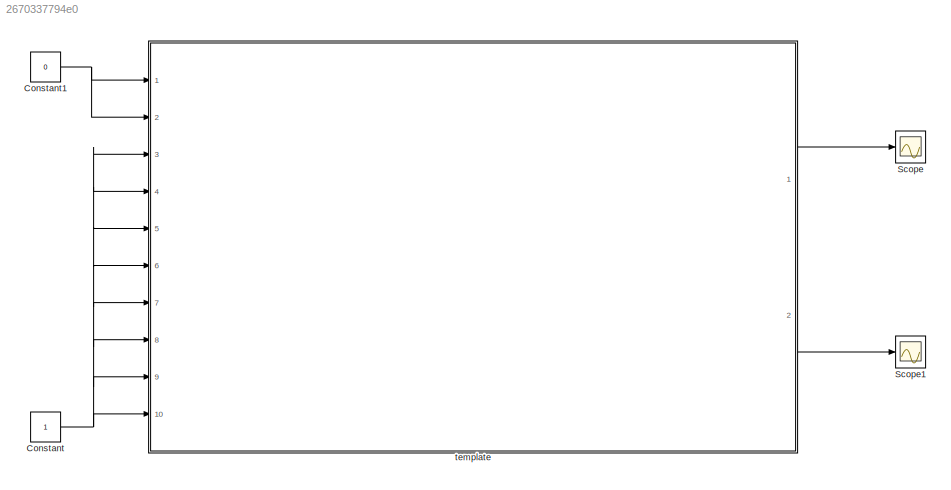
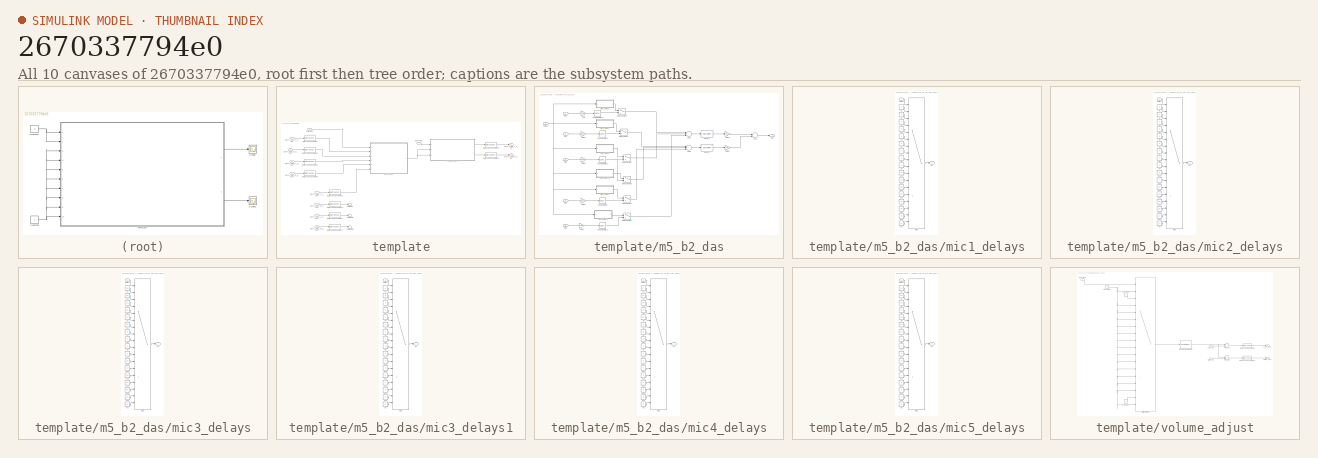
[diagram: thumbnail index - all 10 canvases of the model, root first then tree order]
MODEL slx_2670337794e0
KIND model
CONFIG AbsTol = auto
CONFIG FixedStep = auto
CONFIG MaxStep = auto
CONFIG MinStep = auto
CONFIG RelTol = 1e-3
CONFIG SampleTimeConstraint = Unconstrained
CONFIG Solver = FixedStepAuto
CONFIG SolverMode = SingleTasking
CONFIG SolverName = FixedStepAuto
CONFIG StartTime = 0.0
CONFIG StopTime = 10.0
BLOCK [Constant] Constant
  LockScale = on
  OutDataTypeStr = int32
  SampleTime = -1
BLOCK [Constant] Constant1
  LockScale = on
  OutDataTypeStr = uint32
  SampleTime = -1
  Value = 0
BLOCK [Scope] Scope
  Ports = [1]
  ScopeSpecificationString = Simulink.scopes.TimeScopeBlockCfg('CurrentConfiguration', extmgr.ConfigurationSet(extmgr.Configuration('Core','General UI',true),extmgr.Configuration('Core','Source UI',true),extmgr.Configuration('Sources','WiredSimulink',true,'DataLoggingLimitDataPoints',true,'DataLoggingSaveFormat','Array','DataLoggingDecimation','1','DataLoggingDecimateData',true),extmgr.Configuration('Visuals','Time Domain',tr...<+1477ch>
BLOCK [Scope] Scope1
  Ports = [1]
  ScopeSpecificationString = Simulink.scopes.TimeScopeBlockCfg('CurrentConfiguration', extmgr.ConfigurationSet(extmgr.Configuration('Core','General UI',true),extmgr.Configuration('Core','Source UI',true),extmgr.Configuration('Sources','WiredSimulink',true,'DataLoggingVariableName','ScopeData1','DataLoggingLimitDataPoints',true,'DataLoggingSaveFormat','Array','DataLoggingDecimation','1','DataLoggingDecimateData',true),extmgr.C...<+1508ch>
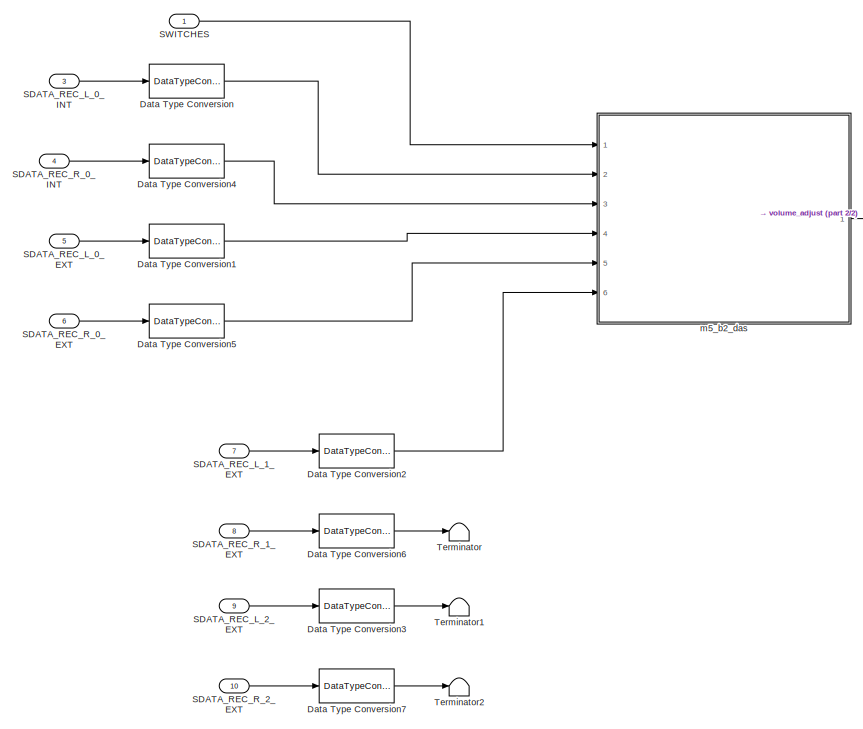
[diagram: template - part 1/2, left side, full height]
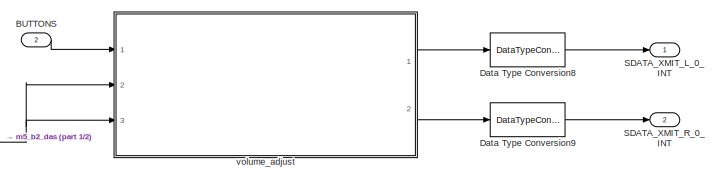
[diagram: template - part 2/2, top right region]
BLOCK [SubSystem] template
  Ports = [10, 2]
  RequestExecContextInheritance = off
  TreatAsAtomicUnit = on
  Variant = off
BLOCK [Inport] template/BUTTONS
  IconDisplay = Port number
  Port = 2
BLOCK [DataTypeConversion] template/Data Type Conversion
  ConvertRealWorld = Stored Integer (SI)
  OutDataTypeStr = fixdt(1,32,31)
  SaturateOnIntegerOverflow = off
BLOCK [DataTypeConversion] template/Data Type Conversion1
  ConvertRealWorld = Stored Integer (SI)
  OutDataTypeStr = fixdt(1,32,31)
  SaturateOnIntegerOverflow = off
BLOCK [DataTypeConversion] template/Data Type Conversion2
  ConvertRealWorld = Stored Integer (SI)
  OutDataTypeStr = fixdt(1,32,31)
  SaturateOnIntegerOverflow = off
BLOCK [DataTypeConversion] template/Data Type Conversion3
  ConvertRealWorld = Stored Integer (SI)
  OutDataTypeStr = fixdt(1,32,31)
  SaturateOnIntegerOverflow = off
BLOCK [DataTypeConversion] template/Data Type Conversion4
  ConvertRealWorld = Stored Integer (SI)
  OutDataTypeStr = fixdt(1,32,31)
  SaturateOnIntegerOverflow = off
BLOCK [DataTypeConversion] template/Data Type Conversion5
  ConvertRealWorld = Stored Integer (SI)
  OutDataTypeStr = fixdt(1,32,31)
  SaturateOnIntegerOverflow = off
BLOCK [DataTypeConversion] template/Data Type Conversion6
  ConvertRealWorld = Stored Integer (SI)
  OutDataTypeStr = fixdt(1,32,31)
  SaturateOnIntegerOverflow = off
BLOCK [DataTypeConversion] template/Data Type Conversion7
  ConvertRealWorld = Stored Integer (SI)
  OutDataTypeStr = fixdt(1,32,31)
  SaturateOnIntegerOverflow = off
BLOCK [DataTypeConversion] template/Data Type Conversion8
  ConvertRealWorld = Stored Integer (SI)
  OutDataTypeStr = int32
BLOCK [DataTypeConversion] template/Data Type Conversion9
  ConvertRealWorld = Stored Integer (SI)
  OutDataTypeStr = int32
BLOCK [Inport] template/SDATA_REC_L_0_EXT
  IconDisplay = Port number
  Port = 5
BLOCK [Inport] template/SDATA_REC_L_0_INT
  IconDisplay = Port number
  Port = 3
BLOCK [Inport] template/SDATA_REC_L_1_EXT
  IconDisplay = Port number
  Port = 7
BLOCK [Inport] template/SDATA_REC_L_2_EXT
  IconDisplay = Port number
  Port = 9
BLOCK [Inport] template/SDATA_REC_R_0_EXT
  IconDisplay = Port number
  Port = 6
BLOCK [Inport] template/SDATA_REC_R_0_INT
  IconDisplay = Port number
  Port = 4
BLOCK [Inport] template/SDATA_REC_R_1_EXT
  IconDisplay = Port number
  Port = 8
BLOCK [Inport] template/SDATA_REC_R_2_EXT
  IconDisplay = Port number
  Port = 10
BLOCK [Outport] template/SDATA_XMIT_L_0_INT
  IconDisplay = Port number
BLOCK [Outport] template/SDATA_XMIT_R_0_INT
  IconDisplay = Port number
  Port = 2
BLOCK [Inport] template/SWITCHES
  IconDisplay = Port number
BLOCK [Terminator] template/Terminator
BLOCK [Terminator] template/Terminator1
BLOCK [Terminator] template/Terminator2
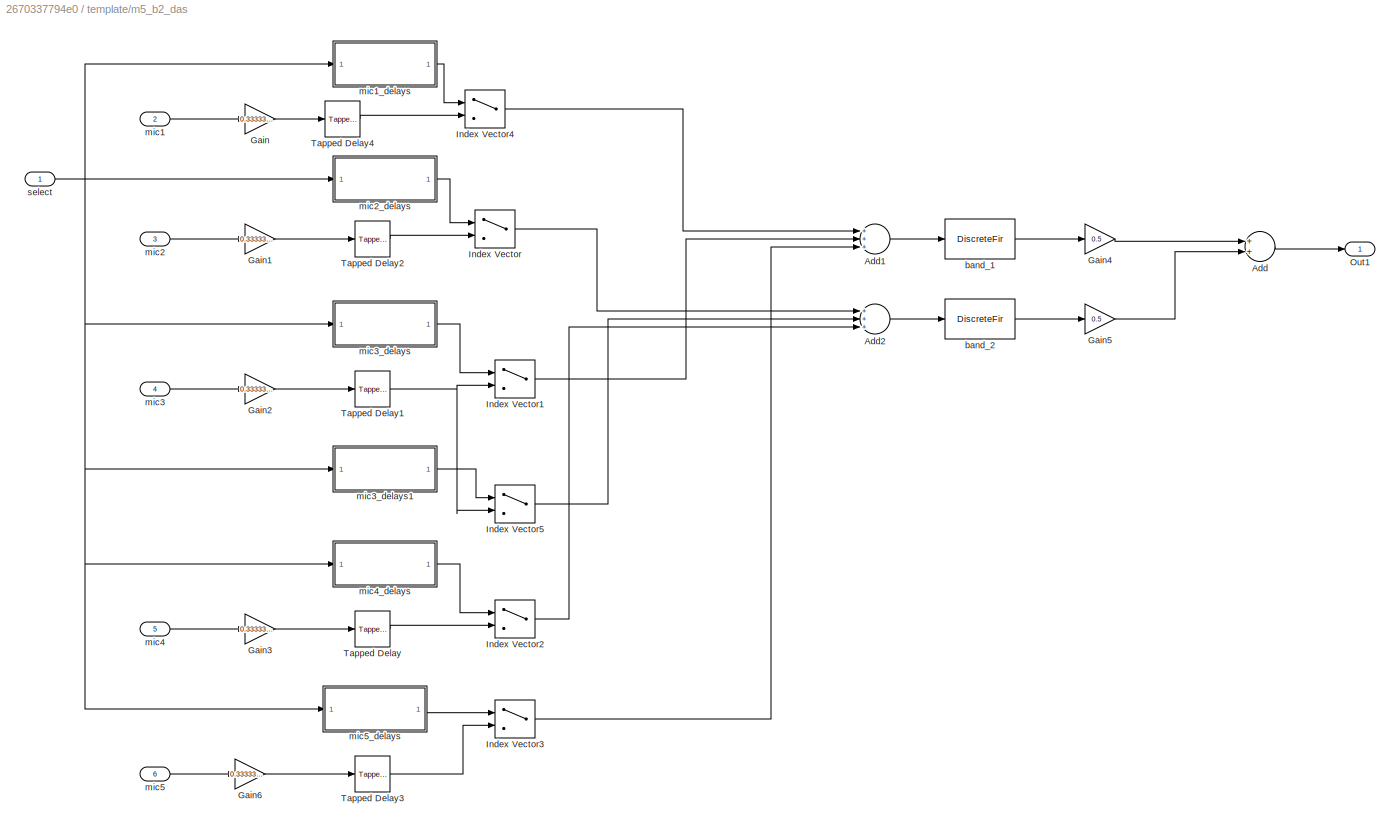
BLOCK [SubSystem] template/m5_b2_das
  Ports = [6, 1]
  RequestExecContextInheritance = off
  Variant = off
BLOCK [Sum] template/m5_b2_das/Add
  AccumDataTypeStr = Inherit: Same as first input
  InputSameDT = off
  OutDataTypeStr = Inherit: Inherit via back propagation
  Ports = [2, 1]
  RndMeth = Zero
  SaturateOnIntegerOverflow = off
BLOCK [Sum] template/m5_b2_das/Add1
  AccumDataTypeStr = Inherit: Same as first input
  InputSameDT = off
  Inputs = +++
  OutDataTypeStr = Inherit: Inherit via back propagation
  Ports = [3, 1]
  RndMeth = Zero
  SaturateOnIntegerOverflow = off
BLOCK [Sum] template/m5_b2_das/Add2
  AccumDataTypeStr = Inherit: Same as first input
  InputSameDT = off
  Inputs = +++
  OutDataTypeStr = Inherit: Inherit via back propagation
  Ports = [3, 1]
  RndMeth = Zero
  SaturateOnIntegerOverflow = off
BLOCK [Gain] template/m5_b2_das/Gain
  Gain = 0.333333333333333333333333
  OutDataTypeStr = Inherit: Inherit via back propagation
  ParamDataTypeStr = fixdt(1,32,31)
  RndMeth = Zero
  SaturateOnIntegerOverflow = off
BLOCK [Gain] template/m5_b2_das/Gain1
  Gain = 0.333333333333333333333333
  OutDataTypeStr = Inherit: Inherit via back propagation
  ParamDataTypeStr = fixdt(1,32,31)
  RndMeth = Zero
  SaturateOnIntegerOverflow = off
BLOCK [Gain] template/m5_b2_das/Gain2
  Gain = 0.333333333333333333333333
  OutDataTypeStr = Inherit: Inherit via back propagation
  ParamDataTypeStr = fixdt(1,32,31)
  RndMeth = Zero
  SaturateOnIntegerOverflow = off
BLOCK [Gain] template/m5_b2_das/Gain3
  Gain = 0.333333333333333333333333
  OutDataTypeStr = Inherit: Inherit via back propagation
  ParamDataTypeStr = fixdt(1,32,31)
  RndMeth = Zero
  SaturateOnIntegerOverflow = off
BLOCK [Gain] template/m5_b2_das/Gain4
  Gain = 0.5
  OutDataTypeStr = Inherit: Inherit via back propagation
  ParamDataTypeStr = fixdt(1,32,31)
  RndMeth = Zero
  SaturateOnIntegerOverflow = off
BLOCK [Gain] template/m5_b2_das/Gain5
  Gain = 0.5
  OutDataTypeStr = Inherit: Inherit via back propagation
  ParamDataTypeStr = fixdt(1,32,31)
  RndMeth = Zero
  SaturateOnIntegerOverflow = off
BLOCK [Gain] template/m5_b2_das/Gain6
  Gain = 0.333333333333333333333333
  OutDataTypeStr = Inherit: Inherit via back propagation
  ParamDataTypeStr = fixdt(1,32,31)
  RndMeth = Zero
  SaturateOnIntegerOverflow = off
BLOCK [MultiPortSwitch] template/m5_b2_das/Index Vector
  DataPortOrder = Zero-based contiguous
  InputSameDT = off
  Inputs = 1
  OutDataTypeStr = Inherit: Inherit via back propagation
  Ports = [2, 1]
  RndMeth = Zero
  SaturateOnIntegerOverflow = off
  zeroidx = on
BLOCK [MultiPortSwitch] template/m5_b2_das/Index Vector1
  DataPortOrder = Zero-based contiguous
  InputSameDT = off
  Inputs = 1
  OutDataTypeStr = Inherit: Inherit via back propagation
  Ports = [2, 1]
  RndMeth = Zero
  SaturateOnIntegerOverflow = off
  zeroidx = on
BLOCK [MultiPortSwitch] template/m5_b2_das/Index Vector2
  DataPortOrder = Zero-based contiguous
  InputSameDT = off
  Inputs = 1
  OutDataTypeStr = Inherit: Inherit via back propagation
  Ports = [2, 1]
  RndMeth = Zero
  SaturateOnIntegerOverflow = off
  zeroidx = on
BLOCK [MultiPortSwitch] template/m5_b2_das/Index Vector3
  DataPortOrder = Zero-based contiguous
  InputSameDT = off
  Inputs = 1
  OutDataTypeStr = Inherit: Inherit via back propagation
  Ports = [2, 1]
  RndMeth = Zero
  SaturateOnIntegerOverflow = off
  zeroidx = on
BLOCK [MultiPortSwitch] template/m5_b2_das/Index Vector4
  DataPortOrder = Zero-based contiguous
  InputSameDT = off
  Inputs = 1
  OutDataTypeStr = Inherit: Inherit via back propagation
  Ports = [2, 1]
  RndMeth = Zero
  SaturateOnIntegerOverflow = off
  zeroidx = on
BLOCK [MultiPortSwitch] template/m5_b2_das/Index Vector5
  DataPortOrder = Zero-based contiguous
  InputSameDT = off
  Inputs = 1
  OutDataTypeStr = Inherit: Inherit via back propagation
  Ports = [2, 1]
  RndMeth = Zero
  SaturateOnIntegerOverflow = off
  zeroidx = on
BLOCK [Outport] template/m5_b2_das/Out1
  IconDisplay = Port number
BLOCK [Reference] template/m5_b2_das/Tapped Delay  REF=simulink/Discrete/Tapped Delay
  Ports = [1, 1]
  SourceBlock = simulink/Discrete/Tapped Delay
  SourceType = Tapped Delay Line
BLOCK [Reference] template/m5_b2_das/Tapped Delay1  REF=simulink/Discrete/Tapped Delay
  Ports = [1, 1]
  SourceBlock = simulink/Discrete/Tapped Delay
  SourceType = Tapped Delay Line
BLOCK [Reference] template/m5_b2_das/Tapped Delay2  REF=simulink/Discrete/Tapped Delay
  Ports = [1, 1]
  SourceBlock = simulink/Discrete/Tapped Delay
  SourceType = Tapped Delay Line
BLOCK [Reference] template/m5_b2_das/Tapped Delay3  REF=simulink/Discrete/Tapped Delay
  Ports = [1, 1]
  SourceBlock = simulink/Discrete/Tapped Delay
  SourceType = Tapped Delay Line
BLOCK [Reference] template/m5_b2_das/Tapped Delay4  REF=simulink/Discrete/Tapped Delay
  Ports = [1, 1]
  SourceBlock = simulink/Discrete/Tapped Delay
  SourceType = Tapped Delay Line
BLOCK [DiscreteFir] template/m5_b2_das/band_1
  AccumDataTypeStr = fixdt(true,32,31)
  CoefDataTypeStr = fixdt(true,32,31)
  Coefficients = [-0.0006782323736677226 -0.00061797501410385913 -0.00055397321805590496 -0.00048323247815375899 -0.0004028708790337593 -0.00031134760707579243 -0.00020971779606389519 -0.00010278232418469137 5.3436904881575911e-19 8.3960710390948516e-05 0.00012913286531009868 0.0001106975285270993 0 -0.00023387312629336585 -0.00062201085466718272 -0.0011931884772806989 -0.0019711128359718205 -0.0029715765047669592...<+1730ch>
  FilterStructure = Direct form symmetric
  InputPortMap = u0
  OutDataTypeStr = fixdt(true,32,31)
  OutputPortMap = o0
  Ports = [1, 1]
  ProductDataTypeStr = fixdt(true,32,31)
  RndMeth = Zero
  TapSumDataTypeStr = fixdt(true,33,31)
BLOCK [DiscreteFir] template/m5_b2_das/band_2
  AccumDataTypeStr = fixdt(true,32,31)
  CoefDataTypeStr = fixdt(true,32,31)
  Coefficients = [0.00031148187044047459 -5.1095487798674356e-05 -0.00038181538543607328 -0.00062770468081234799 -0.00074248208966874556 -0.00070004998252385145 -0.00051178880868063385 -0.00024029641821307493 1.3497652502458736e-18 6.2855354767847132e-05 -0.00018821474507956884 -0.00082507757949582753 -0.0018036973576697544 -0.0029373522174964005 -0.0039121114215135214 -0.0043514130535061441 -0.0039203448488945537...<+1770ch>
  FilterStructure = Direct form symmetric
  InputPortMap = u0
  OutDataTypeStr = fixdt(true,32,31)
  OutputPortMap = o0
  Ports = [1, 1]
  ProductDataTypeStr = fixdt(true,32,31)
  RndMeth = Zero
  TapSumDataTypeStr = fixdt(true,33,31)
BLOCK [Inport] template/m5_b2_das/mic1
  IconDisplay = Port number
  Port = 2
BLOCK [SubSystem] template/m5_b2_das/mic1_delays
  Ports = [1, 1]
  RequestExecContextInheritance = off
  Variant = off
BLOCK [Constant] template/m5_b2_das/mic1_delays/d0
  OutDataTypeStr = uint16
  SampleTime = -1
  Value = 47
BLOCK [Constant] template/m5_b2_das/mic1_delays/d1
  OutDataTypeStr = uint16
  SampleTime = -1
  Value = 0
BLOCK [Constant] template/m5_b2_das/mic1_delays/d10
  OutDataTypeStr = uint16
  SampleTime = -1
  Value = 10
BLOCK [Constant] template/m5_b2_das/mic1_delays/d11
  OutDataTypeStr = uint16
  SampleTime = -1
  Value = 20
BLOCK [Constant] template/m5_b2_das/mic1_delays/d12
  OutDataTypeStr = uint16
  SampleTime = -1
  Value = 29
BLOCK [Constant] template/m5_b2_das/mic1_delays/d13
  OutDataTypeStr = uint16
  SampleTime = -1
  Value = 37
BLOCK [Constant] template/m5_b2_das/mic1_delays/d14
  OutDataTypeStr = uint16
  SampleTime = -1
  Value = 42
BLOCK [Constant] template/m5_b2_das/mic1_delays/d15
  OutDataTypeStr = uint16
  SampleTime = -1
  Value = 46
BLOCK [Constant] template/m5_b2_das/mic1_delays/d16
  OutDataTypeStr = uint16
  SampleTime = -1
  Value = 47
BLOCK [Constant] template/m5_b2_das/mic1_delays/d2
  OutDataTypeStr = uint16
  SampleTime = -1
  Value = 0
BLOCK [Constant] template/m5_b2_das/mic1_delays/d3
  OutDataTypeStr = uint16
  SampleTime = -1
  Value = 0
BLOCK [Constant] template/m5_b2_das/mic1_delays/d4
  OutDataTypeStr = uint16
  SampleTime = -1
  Value = 0
BLOCK [Constant] template/m5_b2_das/mic1_delays/d5
  OutDataTypeStr = uint16
  SampleTime = -1
  Value = 0
BLOCK [Constant] template/m5_b2_das/mic1_delays/d6
  OutDataTypeStr = uint16
  SampleTime = -1
  Value = 0
BLOCK [Constant] template/m5_b2_das/mic1_delays/d7
  OutDataTypeStr = uint16
  SampleTime = -1
  Value = 0
BLOCK [Constant] template/m5_b2_das/mic1_delays/d8
  OutDataTypeStr = uint16
  SampleTime = -1
  Value = 0
BLOCK [Constant] template/m5_b2_das/mic1_delays/d9
  OutDataTypeStr = uint16
  SampleTime = -1
  Value = 0
BLOCK [MultiPortSwitch] template/m5_b2_das/mic1_delays/mps
  DataPortForDefault = Additional data port
  DataPortOrder = Zero-based contiguous
  DiagnosticForDefault = None
  Inputs = 16
  OutDataTypeStr = Inherit: Inherit via back propagation
  Ports = [18, 1]
  RndMeth = Zero
  SaturateOnIntegerOverflow = off
BLOCK [Outport] template/m5_b2_das/mic1_delays/out
  IconDisplay = Port number
BLOCK [Inport] template/m5_b2_das/mic1_delays/select
  IconDisplay = Port number
BLOCK [Inport] template/m5_b2_das/mic2
  IconDisplay = Port number
  Port = 3
BLOCK [SubSystem] template/m5_b2_das/mic2_delays
  Ports = [1, 1]
  RequestExecContextInheritance = off
  Variant = off
BLOCK [Constant] template/m5_b2_das/mic2_delays/d0
  OutDataTypeStr = uint16
  SampleTime = -1
  Value = 17
BLOCK [Constant] template/m5_b2_das/mic2_delays/d1
  OutDataTypeStr = uint16
  SampleTime = -1
  Value = 0
BLOCK [Constant] template/m5_b2_das/mic2_delays/d10
  OutDataTypeStr = uint16
  SampleTime = -1
  Value = 3
BLOCK [Constant] template/m5_b2_das/mic2_delays/d11
  OutDataTypeStr = uint16
  SampleTime = -1
  Value = 7
BLOCK [Constant] template/m5_b2_das/mic2_delays/d12
  OutDataTypeStr = uint16
  SampleTime = -1
  Value = 10
BLOCK [Constant] template/m5_b2_das/mic2_delays/d13
  OutDataTypeStr = uint16
  SampleTime = -1
  Value = 13
BLOCK [Constant] template/m5_b2_das/mic2_delays/d14
  OutDataTypeStr = uint16
  SampleTime = -1
  Value = 15
BLOCK [Constant] template/m5_b2_das/mic2_delays/d15
  OutDataTypeStr = uint16
  SampleTime = -1
  Value = 16
BLOCK [Constant] template/m5_b2_das/mic2_delays/d16
  OutDataTypeStr = uint16
  SampleTime = -1
  Value = 17
BLOCK [Constant] template/m5_b2_das/mic2_delays/d2
  OutDataTypeStr = uint16
  SampleTime = -1
  Value = 0
BLOCK [Constant] template/m5_b2_das/mic2_delays/d3
  OutDataTypeStr = uint16
  SampleTime = -1
  Value = 0
BLOCK [Constant] template/m5_b2_das/mic2_delays/d4
  OutDataTypeStr = uint16
  SampleTime = -1
  Value = 0
BLOCK [Constant] template/m5_b2_das/mic2_delays/d5
  OutDataTypeStr = uint16
  SampleTime = -1
  Value = 0
BLOCK [Constant] template/m5_b2_das/mic2_delays/d6
  OutDataTypeStr = uint16
  SampleTime = -1
  Value = 0
BLOCK [Constant] template/m5_b2_das/mic2_delays/d7
  OutDataTypeStr = uint16
  SampleTime = -1
  Value = 0
BLOCK [Constant] template/m5_b2_das/mic2_delays/d8
  OutDataTypeStr = uint16
  SampleTime = -1
  Value = 0
BLOCK [Constant] template/m5_b2_das/mic2_delays/d9
  OutDataTypeStr = uint16
  SampleTime = -1
  Value = 0
BLOCK [MultiPortSwitch] template/m5_b2_das/mic2_delays/mps
  DataPortForDefault = Additional data port
  DataPortOrder = Zero-based contiguous
  DiagnosticForDefault = None
  Inputs = 16
  OutDataTypeStr = Inherit: Inherit via back propagation
  Ports = [18, 1]
  RndMeth = Zero
  SaturateOnIntegerOverflow = off
BLOCK [Outport] template/m5_b2_das/mic2_delays/out
  IconDisplay = Port number
BLOCK [Inport] template/m5_b2_das/mic2_delays/select
  IconDisplay = Port number
BLOCK [Inport] template/m5_b2_das/mic3
  IconDisplay = Port number
  Port = 4
BLOCK [SubSystem] template/m5_b2_das/mic3_delays
  Ports = [1, 1]
  RequestExecContextInheritance = off
  Variant = off
BLOCK [Constant] template/m5_b2_das/mic3_delays/d0
  OutDataTypeStr = uint16
  SampleTime = -1
  Value = 23
BLOCK [Constant] template/m5_b2_das/mic3_delays/d1
  OutDataTypeStr = uint16
  SampleTime = -1
  Value = 23
BLOCK [Constant] template/m5_b2_das/mic3_delays/d10
  OutDataTypeStr = uint16
  SampleTime = -1
  Value = 5
BLOCK [Constant] template/m5_b2_das/mic3_delays/d11
  OutDataTypeStr = uint16
  SampleTime = -1
  Value = 10
BLOCK [Constant] template/m5_b2_das/mic3_delays/d12
  OutDataTypeStr = uint16
  SampleTime = -1
  Value = 14
BLOCK [Constant] template/m5_b2_das/mic3_delays/d13
  OutDataTypeStr = uint16
  SampleTime = -1
  Value = 18
BLOCK [Constant] template/m5_b2_das/mic3_delays/d14
  OutDataTypeStr = uint16
  SampleTime = -1
  Value = 21
BLOCK [Constant] template/m5_b2_das/mic3_delays/d15
  OutDataTypeStr = uint16
  SampleTime = -1
  Value = 23
BLOCK [Constant] template/m5_b2_das/mic3_delays/d16
  OutDataTypeStr = uint16
  SampleTime = -1
  Value = 23
BLOCK [Constant] template/m5_b2_das/mic3_delays/d2
  OutDataTypeStr = uint16
  SampleTime = -1
  Value = 23
BLOCK [Constant] template/m5_b2_das/mic3_delays/d3
  OutDataTypeStr = uint16
  SampleTime = -1
  Value = 21
BLOCK [Constant] template/m5_b2_das/mic3_delays/d4
  OutDataTypeStr = uint16
  SampleTime = -1
  Value = 18
BLOCK [Constant] template/m5_b2_das/mic3_delays/d5
  OutDataTypeStr = uint16
  SampleTime = -1
  Value = 14
BLOCK [Constant] template/m5_b2_das/mic3_delays/d6
  OutDataTypeStr = uint16
  SampleTime = -1
  Value = 10
BLOCK [Constant] template/m5_b2_das/mic3_delays/d7
  OutDataTypeStr = uint16
  SampleTime = -1
  Value = 5
BLOCK [Constant] template/m5_b2_das/mic3_delays/d8
  OutDataTypeStr = uint16
  SampleTime = -1
  Value = 0
BLOCK [Constant] template/m5_b2_das/mic3_delays/d9
  OutDataTypeStr = uint16
  SampleTime = -1
  Value = 0
BLOCK [MultiPortSwitch] template/m5_b2_das/mic3_delays/mps
  DataPortForDefault = Additional data port
  DataPortOrder = Zero-based contiguous
  DiagnosticForDefault = None
  Inputs = 16
  OutDataTypeStr = Inherit: Inherit via back propagation
  Ports = [18, 1]
  RndMeth = Zero
  SaturateOnIntegerOverflow = off
BLOCK [Outport] template/m5_b2_das/mic3_delays/out
  IconDisplay = Port number
BLOCK [Inport] template/m5_b2_das/mic3_delays/select
  IconDisplay = Port number
BLOCK [SubSystem] template/m5_b2_das/mic3_delays1
  Ports = [1, 1]
  RequestExecContextInheritance = off
  Variant = off
BLOCK [Constant] template/m5_b2_das/mic3_delays1/d0
  OutDataTypeStr = uint16
  SampleTime = -1
  Value = 8
BLOCK [Constant] template/m5_b2_das/mic3_delays1/d1
  OutDataTypeStr = uint16
  SampleTime = -1
  Value = 8
BLOCK [Constant] template/m5_b2_das/mic3_delays1/d10
  OutDataTypeStr = uint16
  SampleTime = -1
BLOCK [Constant] template/m5_b2_das/mic3_delays1/d11
  OutDataTypeStr = uint16
  SampleTime = -1
  Value = 3
BLOCK [Constant] template/m5_b2_das/mic3_delays1/d12
  OutDataTypeStr = uint16
  SampleTime = -1
  Value = 5
BLOCK [Constant] template/m5_b2_das/mic3_delays1/d13
  OutDataTypeStr = uint16
  SampleTime = -1
  Value = 6
BLOCK [Constant] template/m5_b2_das/mic3_delays1/d14
  OutDataTypeStr = uint16
  SampleTime = -1
  Value = 7
BLOCK [Constant] template/m5_b2_das/mic3_delays1/d15
  OutDataTypeStr = uint16
  SampleTime = -1
  Value = 8
BLOCK [Constant] template/m5_b2_das/mic3_delays1/d16
  OutDataTypeStr = uint16
  SampleTime = -1
  Value = 8
BLOCK [Constant] template/m5_b2_das/mic3_delays1/d2
  OutDataTypeStr = uint16
  SampleTime = -1
  Value = 8
BLOCK [Constant] template/m5_b2_das/mic3_delays1/d3
  OutDataTypeStr = uint16
  SampleTime = -1
  Value = 7
BLOCK [Constant] template/m5_b2_das/mic3_delays1/d4
  OutDataTypeStr = uint16
  SampleTime = -1
  Value = 6
BLOCK [Constant] template/m5_b2_das/mic3_delays1/d5
  OutDataTypeStr = uint16
  SampleTime = -1
  Value = 5
BLOCK [Constant] template/m5_b2_das/mic3_delays1/d6
  OutDataTypeStr = uint16
  SampleTime = -1
  Value = 3
BLOCK [Constant] template/m5_b2_das/mic3_delays1/d7
  OutDataTypeStr = uint16
  SampleTime = -1
BLOCK [Constant] template/m5_b2_das/mic3_delays1/d8
  OutDataTypeStr = uint16
  SampleTime = -1
  Value = 0
BLOCK [Constant] template/m5_b2_das/mic3_delays1/d9
  OutDataTypeStr = uint16
  SampleTime = -1
  Value = 0
BLOCK [MultiPortSwitch] template/m5_b2_das/mic3_delays1/mps
  DataPortForDefault = Additional data port
  DataPortOrder = Zero-based contiguous
  DiagnosticForDefault = None
  Inputs = 16
  OutDataTypeStr = Inherit: Inherit via back propagation
  Ports = [18, 1]
  RndMeth = Zero
  SaturateOnIntegerOverflow = off
BLOCK [Outport] template/m5_b2_das/mic3_delays1/out
  IconDisplay = Port number
BLOCK [Inport] template/m5_b2_das/mic3_delays1/select
  IconDisplay = Port number
BLOCK [Inport] template/m5_b2_das/mic4
  IconDisplay = Port number
  Port = 5
BLOCK [SubSystem] template/m5_b2_das/mic4_delays
  Ports = [1, 1]
  RequestExecContextInheritance = off
  Variant = off
BLOCK [Constant] template/m5_b2_das/mic4_delays/d0
  OutDataTypeStr = uint16
  SampleTime = -1
  Value = 0
BLOCK [Constant] template/m5_b2_das/mic4_delays/d1
  OutDataTypeStr = uint16
  SampleTime = -1
  Value = 17
BLOCK [Constant] template/m5_b2_das/mic4_delays/d10
  OutDataTypeStr = uint16
  SampleTime = -1
  Value = 0
BLOCK [Constant] template/m5_b2_das/mic4_delays/d11
  OutDataTypeStr = uint16
  SampleTime = -1
  Value = 0
BLOCK [Constant] template/m5_b2_das/mic4_delays/d12
  OutDataTypeStr = uint16
  SampleTime = -1
  Value = 0
BLOCK [Constant] template/m5_b2_das/mic4_delays/d13
  OutDataTypeStr = uint16
  SampleTime = -1
  Value = 0
BLOCK [Constant] template/m5_b2_das/mic4_delays/d14
  OutDataTypeStr = uint16
  SampleTime = -1
  Value = 0
BLOCK [Constant] template/m5_b2_das/mic4_delays/d15
  OutDataTypeStr = uint16
  SampleTime = -1
  Value = 0
BLOCK [Constant] template/m5_b2_das/mic4_delays/d16
  OutDataTypeStr = uint16
  SampleTime = -1
  Value = 0
BLOCK [Constant] template/m5_b2_das/mic4_delays/d2
  OutDataTypeStr = uint16
  SampleTime = -1
  Value = 16
BLOCK [Constant] template/m5_b2_das/mic4_delays/d3
  OutDataTypeStr = uint16
  SampleTime = -1
  Value = 15
BLOCK [Constant] template/m5_b2_das/mic4_delays/d4
  OutDataTypeStr = uint16
  SampleTime = -1
  Value = 13
BLOCK [Constant] template/m5_b2_das/mic4_delays/d5
  OutDataTypeStr = uint16
  SampleTime = -1
  Value = 10
BLOCK [Constant] template/m5_b2_das/mic4_delays/d6
  OutDataTypeStr = uint16
  SampleTime = -1
  Value = 7
BLOCK [Constant] template/m5_b2_das/mic4_delays/d7
  OutDataTypeStr = uint16
  SampleTime = -1
  Value = 3
BLOCK [Constant] template/m5_b2_das/mic4_delays/d8
  OutDataTypeStr = uint16
  SampleTime = -1
  Value = 0
BLOCK [Constant] template/m5_b2_das/mic4_delays/d9
  OutDataTypeStr = uint16
  SampleTime = -1
  Value = 0
BLOCK [MultiPortSwitch] template/m5_b2_das/mic4_delays/mps
  DataPortForDefault = Additional data port
  DataPortOrder = Zero-based contiguous
  DiagnosticForDefault = None
  Inputs = 16
  OutDataTypeStr = Inherit: Inherit via back propagation
  Ports = [18, 1]
  RndMeth = Zero
  SaturateOnIntegerOverflow = off
BLOCK [Outport] template/m5_b2_das/mic4_delays/out
  IconDisplay = Port number
BLOCK [Inport] template/m5_b2_das/mic4_delays/select
  IconDisplay = Port number
BLOCK [Inport] template/m5_b2_das/mic5
  IconDisplay = Port number
  Port = 6
BLOCK [SubSystem] template/m5_b2_das/mic5_delays
  Ports = [1, 1]
  RequestExecContextInheritance = off
  Variant = off
BLOCK [Constant] template/m5_b2_das/mic5_delays/d0
  OutDataTypeStr = uint16
  SampleTime = -1
  Value = 0
BLOCK [Constant] template/m5_b2_das/mic5_delays/d1
  OutDataTypeStr = uint16
  SampleTime = -1
  Value = 47
BLOCK [Constant] template/m5_b2_das/mic5_delays/d10
  OutDataTypeStr = uint16
  SampleTime = -1
  Value = 0
BLOCK [Constant] template/m5_b2_das/mic5_delays/d11
  OutDataTypeStr = uint16
  SampleTime = -1
  Value = 0
BLOCK [Constant] template/m5_b2_das/mic5_delays/d12
  OutDataTypeStr = uint16
  SampleTime = -1
  Value = 0
BLOCK [Constant] template/m5_b2_das/mic5_delays/d13
  OutDataTypeStr = uint16
  SampleTime = -1
  Value = 0
BLOCK [Constant] template/m5_b2_das/mic5_delays/d14
  OutDataTypeStr = uint16
  SampleTime = -1
  Value = 0
BLOCK [Constant] template/m5_b2_das/mic5_delays/d15
  OutDataTypeStr = uint16
  SampleTime = -1
  Value = 0
BLOCK [Constant] template/m5_b2_das/mic5_delays/d16
  OutDataTypeStr = uint16
  SampleTime = -1
  Value = 0
BLOCK [Constant] template/m5_b2_das/mic5_delays/d2
  OutDataTypeStr = uint16
  SampleTime = -1
  Value = 46
BLOCK [Constant] template/m5_b2_das/mic5_delays/d3
  OutDataTypeStr = uint16
  SampleTime = -1
  Value = 42
BLOCK [Constant] template/m5_b2_das/mic5_delays/d4
  OutDataTypeStr = uint16
  SampleTime = -1
  Value = 37
BLOCK [Constant] template/m5_b2_das/mic5_delays/d5
  OutDataTypeStr = uint16
  SampleTime = -1
  Value = 29
BLOCK [Constant] template/m5_b2_das/mic5_delays/d6
  OutDataTypeStr = uint16
  SampleTime = -1
  Value = 20
BLOCK [Constant] template/m5_b2_das/mic5_delays/d7
  OutDataTypeStr = uint16
  SampleTime = -1
  Value = 10
BLOCK [Constant] template/m5_b2_das/mic5_delays/d8
  OutDataTypeStr = uint16
  SampleTime = -1
  Value = 0
BLOCK [Constant] template/m5_b2_das/mic5_delays/d9
  OutDataTypeStr = uint16
  SampleTime = -1
  Value = 0
BLOCK [MultiPortSwitch] template/m5_b2_das/mic5_delays/mps
  DataPortForDefault = Additional data port
  DataPortOrder = Zero-based contiguous
  DiagnosticForDefault = None
  Inputs = 16
  OutDataTypeStr = Inherit: Inherit via back propagation
  Ports = [18, 1]
  RndMeth = Zero
  SaturateOnIntegerOverflow = off
BLOCK [Outport] template/m5_b2_das/mic5_delays/out
  IconDisplay = Port number
BLOCK [Inport] template/m5_b2_das/mic5_delays/select
  IconDisplay = Port number
BLOCK [Inport] template/m5_b2_das/select
  IconDisplay = Port number
BLOCK [SubSystem] template/volume_adjust
  Ports = [3, 2]
  RequestExecContextInheritance = off
  Variant = off
BLOCK [Inport] template/volume_adjust/BUTTONS
  IconDisplay = Port number
BLOCK [Constant] template/volume_adjust/Constant
  OutDataTypeStr = fixdt(1,64,31)
  SampleTime = -1
BLOCK [Constant] template/volume_adjust/Constant1
  OutDataTypeStr = fixdt(1,64,31)
  SampleTime = -1
  Value = -1
BLOCK [Constant] template/volume_adjust/Constant2
  OutDataTypeStr = fixdt(1,64,31)
  SampleTime = -1
  Value = 0
BLOCK [DataTypeConversion] template/volume_adjust/Data Type Conversion
  OutDataTypeStr = fixdt(1,32,31)
  SaturateOnIntegerOverflow = off
BLOCK [DataTypeConversion] template/volume_adjust/Data Type Conversion1
  OutDataTypeStr = fixdt(1,32,31)
  SaturateOnIntegerOverflow = off
BLOCK [DiscreteIntegrator] template/volume_adjust/Discrete-Time Integrator
  ICPrevOutput = DiscIntNeverNeededParam
  ICPrevScaledInput = DiscIntNeverNeededParam
  InitialCondition = 1
  LimitOutput = on
  LowerSaturationLimit = 0
  OutDataTypeStr = fixdt(1,64,31)
  Ports = [1, 1]
  RndMeth = Zero
  SaturateOnIntegerOverflow = on
  UpperSaturationLimit = 10000
  gainval = 0.00005
BLOCK [Inport] template/volume_adjust/LEFT_IN
  IconDisplay = Port number
  Port = 2
BLOCK [Outport] template/volume_adjust/LEFT_OUT
  IconDisplay = Port number
BLOCK [MultiPortSwitch] template/volume_adjust/Multiport Switch
  DataPortForDefault = Additional data port
  DataPortIndices = {16,2}
  DiagnosticForDefault = None
  InputSameDT = off
  Inputs = 16
  OutDataTypeStr = Inherit: Inherit via back propagation
  Ports = [18, 1]
  RndMeth = Zero
  SaturateOnIntegerOverflow = off
BLOCK [Product] template/volume_adjust/Product
  InputSameDT = off
  OutDataTypeStr = Inherit: Inherit via back propagation
  Ports = [2, 1]
  SaturateOnIntegerOverflow = off
BLOCK [Product] template/volume_adjust/Product1
  InputSameDT = off
  OutDataTypeStr = Inherit: Inherit via back propagation
  Ports = [2, 1]
  SaturateOnIntegerOverflow = off
BLOCK [Inport] template/volume_adjust/RIGHT_IN
  IconDisplay = Port number
  Port = 3
BLOCK [Outport] template/volume_adjust/RIGHT_OUT
  IconDisplay = Port number
  Port = 2
NET Constant1:1 -> template:1, template:2
NET Constant:1 -> template:10, template:3, template:4, template:5, template:6, template:7, template:8, template:9
LINE template/BUTTONS:1 -> template/volume_adjust:1
LINE template/Data Type Conversion1:1 -> template/m5_b2_das:4
LINE template/Data Type Conversion2:1 -> template/m5_b2_das:6
LINE template/Data Type Conversion3:1 -> template/Terminator1:1
LINE template/Data Type Conversion4:1 -> template/m5_b2_das:3
LINE template/Data Type Conversion5:1 -> template/m5_b2_das:5
LINE template/Data Type Conversion6:1 -> template/Terminator:1
LINE template/Data Type Conversion7:1 -> template/Terminator2:1
LINE template/Data Type Conversion8:1 -> template/SDATA_XMIT_L_0_INT:1
LINE template/Data Type Conversion9:1 -> template/SDATA_XMIT_R_0_INT:1
LINE template/Data Type Conversion:1 -> template/m5_b2_das:2
LINE template/SDATA_REC_L_0_EXT:1 -> template/Data Type Conversion1:1
LINE template/SDATA_REC_L_0_INT:1 -> template/Data Type Conversion:1
LINE template/SDATA_REC_L_1_EXT:1 -> template/Data Type Conversion2:1
LINE template/SDATA_REC_L_2_EXT:1 -> template/Data Type Conversion3:1
LINE template/SDATA_REC_R_0_EXT:1 -> template/Data Type Conversion5:1
LINE template/SDATA_REC_R_0_INT:1 -> template/Data Type Conversion4:1
LINE template/SDATA_REC_R_1_EXT:1 -> template/Data Type Conversion6:1
LINE template/SDATA_REC_R_2_EXT:1 -> template/Data Type Conversion7:1
LINE template/SWITCHES:1 -> template/m5_b2_das:1
LINE template/m5_b2_das/Add1:1 -> template/m5_b2_das/band_1:1
LINE template/m5_b2_das/Add2:1 -> template/m5_b2_das/band_2:1
LINE template/m5_b2_das/Add:1 -> template/m5_b2_das/Out1:1
LINE template/m5_b2_das/Gain1:1 -> template/m5_b2_das/Tapped Delay2:1
LINE template/m5_b2_das/Gain2:1 -> template/m5_b2_das/Tapped Delay1:1
LINE template/m5_b2_das/Gain3:1 -> template/m5_b2_das/Tapped Delay:1
LINE template/m5_b2_das/Gain4:1 -> template/m5_b2_das/Add:1
LINE template/m5_b2_das/Gain5:1 -> template/m5_b2_das/Add:2
LINE template/m5_b2_das/Gain6:1 -> template/m5_b2_das/Tapped Delay3:1
LINE template/m5_b2_das/Gain:1 -> template/m5_b2_das/Tapped Delay4:1
LINE template/m5_b2_das/Index Vector1:1 -> template/m5_b2_das/Add1:2
LINE template/m5_b2_das/Index Vector2:1 -> template/m5_b2_das/Add2:3
LINE template/m5_b2_das/Index Vector3:1 -> template/m5_b2_das/Add1:3
LINE template/m5_b2_das/Index Vector4:1 -> template/m5_b2_das/Add1:1
LINE template/m5_b2_das/Index Vector5:1 -> template/m5_b2_das/Add2:2
LINE template/m5_b2_das/Index Vector:1 -> template/m5_b2_das/Add2:1
NET template/m5_b2_das/Tapped Delay1:1 -> template/m5_b2_das/Index Vector1:2, template/m5_b2_das/Index Vector5:2
LINE template/m5_b2_das/Tapped Delay2:1 -> template/m5_b2_das/Index Vector:2
LINE template/m5_b2_das/Tapped Delay3:1 -> template/m5_b2_das/Index Vector3:2
LINE template/m5_b2_das/Tapped Delay4:1 -> template/m5_b2_das/Index Vector4:2
LINE template/m5_b2_das/Tapped Delay:1 -> template/m5_b2_das/Index Vector2:2
LINE template/m5_b2_das/band_1:1 -> template/m5_b2_das/Gain4:1
LINE template/m5_b2_das/band_2:1 -> template/m5_b2_das/Gain5:1
LINE template/m5_b2_das/mic1:1 -> template/m5_b2_das/Gain:1
LINE template/m5_b2_das/mic1_delays/d0:1 -> template/m5_b2_das/mic1_delays/mps:18
LINE template/m5_b2_das/mic1_delays/d10:1 -> template/m5_b2_das/mic1_delays/mps:11
LINE template/m5_b2_das/mic1_delays/d11:1 -> template/m5_b2_das/mic1_delays/mps:12
LINE template/m5_b2_das/mic1_delays/d12:1 -> template/m5_b2_das/mic1_delays/mps:13
LINE template/m5_b2_das/mic1_delays/d13:1 -> template/m5_b2_das/mic1_delays/mps:14
LINE template/m5_b2_das/mic1_delays/d14:1 -> template/m5_b2_das/mic1_delays/mps:15
LINE template/m5_b2_das/mic1_delays/d15:1 -> template/m5_b2_das/mic1_delays/mps:16
LINE template/m5_b2_das/mic1_delays/d16:1 -> template/m5_b2_das/mic1_delays/mps:17
LINE template/m5_b2_das/mic1_delays/d1:1 -> template/m5_b2_das/mic1_delays/mps:2
LINE template/m5_b2_das/mic1_delays/d2:1 -> template/m5_b2_das/mic1_delays/mps:3
LINE template/m5_b2_das/mic1_delays/d3:1 -> template/m5_b2_das/mic1_delays/mps:4
LINE template/m5_b2_das/mic1_delays/d4:1 -> template/m5_b2_das/mic1_delays/mps:5
LINE template/m5_b2_das/mic1_delays/d5:1 -> template/m5_b2_das/mic1_delays/mps:6
LINE template/m5_b2_das/mic1_delays/d6:1 -> template/m5_b2_das/mic1_delays/mps:7
LINE template/m5_b2_das/mic1_delays/d7:1 -> template/m5_b2_das/mic1_delays/mps:8
LINE template/m5_b2_das/mic1_delays/d8:1 -> template/m5_b2_das/mic1_delays/mps:9
LINE template/m5_b2_das/mic1_delays/d9:1 -> template/m5_b2_das/mic1_delays/mps:10
LINE template/m5_b2_das/mic1_delays/mps:1 -> template/m5_b2_das/mic1_delays/out:1
LINE template/m5_b2_das/mic1_delays/select:1 -> template/m5_b2_das/mic1_delays/mps:1
LINE template/m5_b2_das/mic1_delays:1 -> template/m5_b2_das/Index Vector4:1
LINE template/m5_b2_das/mic2:1 -> template/m5_b2_das/Gain1:1
LINE template/m5_b2_das/mic2_delays/d0:1 -> template/m5_b2_das/mic2_delays/mps:18
LINE template/m5_b2_das/mic2_delays/d10:1 -> template/m5_b2_das/mic2_delays/mps:11
LINE template/m5_b2_das/mic2_delays/d11:1 -> template/m5_b2_das/mic2_delays/mps:12
LINE template/m5_b2_das/mic2_delays/d12:1 -> template/m5_b2_das/mic2_delays/mps:13
LINE template/m5_b2_das/mic2_delays/d13:1 -> template/m5_b2_das/mic2_delays/mps:14
LINE template/m5_b2_das/mic2_delays/d14:1 -> template/m5_b2_das/mic2_delays/mps:15
LINE template/m5_b2_das/mic2_delays/d15:1 -> template/m5_b2_das/mic2_delays/mps:16
LINE template/m5_b2_das/mic2_delays/d16:1 -> template/m5_b2_das/mic2_delays/mps:17
LINE template/m5_b2_das/mic2_delays/d1:1 -> template/m5_b2_das/mic2_delays/mps:2
LINE template/m5_b2_das/mic2_delays/d2:1 -> template/m5_b2_das/mic2_delays/mps:3
LINE template/m5_b2_das/mic2_delays/d3:1 -> template/m5_b2_das/mic2_delays/mps:4
LINE template/m5_b2_das/mic2_delays/d4:1 -> template/m5_b2_das/mic2_delays/mps:5
LINE template/m5_b2_das/mic2_delays/d5:1 -> template/m5_b2_das/mic2_delays/mps:6
LINE template/m5_b2_das/mic2_delays/d6:1 -> template/m5_b2_das/mic2_delays/mps:7
LINE template/m5_b2_das/mic2_delays/d7:1 -> template/m5_b2_das/mic2_delays/mps:8
LINE template/m5_b2_das/mic2_delays/d8:1 -> template/m5_b2_das/mic2_delays/mps:9
LINE template/m5_b2_das/mic2_delays/d9:1 -> template/m5_b2_das/mic2_delays/mps:10
LINE template/m5_b2_das/mic2_delays/mps:1 -> template/m5_b2_das/mic2_delays/out:1
LINE template/m5_b2_das/mic2_delays/select:1 -> template/m5_b2_das/mic2_delays/mps:1
LINE template/m5_b2_das/mic2_delays:1 -> template/m5_b2_das/Index Vector:1
LINE template/m5_b2_das/mic3:1 -> template/m5_b2_das/Gain2:1
LINE template/m5_b2_das/mic3_delays/d0:1 -> template/m5_b2_das/mic3_delays/mps:18
LINE template/m5_b2_das/mic3_delays/d10:1 -> template/m5_b2_das/mic3_delays/mps:11
LINE template/m5_b2_das/mic3_delays/d11:1 -> template/m5_b2_das/mic3_delays/mps:12
LINE template/m5_b2_das/mic3_delays/d12:1 -> template/m5_b2_das/mic3_delays/mps:13
LINE template/m5_b2_das/mic3_delays/d13:1 -> template/m5_b2_das/mic3_delays/mps:14
LINE template/m5_b2_das/mic3_delays/d14:1 -> template/m5_b2_das/mic3_delays/mps:15
LINE template/m5_b2_das/mic3_delays/d15:1 -> template/m5_b2_das/mic3_delays/mps:16
LINE template/m5_b2_das/mic3_delays/d16:1 -> template/m5_b2_das/mic3_delays/mps:17
LINE template/m5_b2_das/mic3_delays/d1:1 -> template/m5_b2_das/mic3_delays/mps:2
LINE template/m5_b2_das/mic3_delays/d2:1 -> template/m5_b2_das/mic3_delays/mps:3
LINE template/m5_b2_das/mic3_delays/d3:1 -> template/m5_b2_das/mic3_delays/mps:4
LINE template/m5_b2_das/mic3_delays/d4:1 -> template/m5_b2_das/mic3_delays/mps:5
LINE template/m5_b2_das/mic3_delays/d5:1 -> template/m5_b2_das/mic3_delays/mps:6
LINE template/m5_b2_das/mic3_delays/d6:1 -> template/m5_b2_das/mic3_delays/mps:7
LINE template/m5_b2_das/mic3_delays/d7:1 -> template/m5_b2_das/mic3_delays/mps:8
LINE template/m5_b2_das/mic3_delays/d8:1 -> template/m5_b2_das/mic3_delays/mps:9
LINE template/m5_b2_das/mic3_delays/d9:1 -> template/m5_b2_das/mic3_delays/mps:10
LINE template/m5_b2_das/mic3_delays/mps:1 -> template/m5_b2_das/mic3_delays/out:1
LINE template/m5_b2_das/mic3_delays/select:1 -> template/m5_b2_das/mic3_delays/mps:1
LINE template/m5_b2_das/mic3_delays1/d0:1 -> template/m5_b2_das/mic3_delays1/mps:18
LINE template/m5_b2_das/mic3_delays1/d10:1 -> template/m5_b2_das/mic3_delays1/mps:11
LINE template/m5_b2_das/mic3_delays1/d11:1 -> template/m5_b2_das/mic3_delays1/mps:12
LINE template/m5_b2_das/mic3_delays1/d12:1 -> template/m5_b2_das/mic3_delays1/mps:13
LINE template/m5_b2_das/mic3_delays1/d13:1 -> template/m5_b2_das/mic3_delays1/mps:14
LINE template/m5_b2_das/mic3_delays1/d14:1 -> template/m5_b2_das/mic3_delays1/mps:15
LINE template/m5_b2_das/mic3_delays1/d15:1 -> template/m5_b2_das/mic3_delays1/mps:16
LINE template/m5_b2_das/mic3_delays1/d16:1 -> template/m5_b2_das/mic3_delays1/mps:17
LINE template/m5_b2_das/mic3_delays1/d1:1 -> template/m5_b2_das/mic3_delays1/mps:2
LINE template/m5_b2_das/mic3_delays1/d2:1 -> template/m5_b2_das/mic3_delays1/mps:3
LINE template/m5_b2_das/mic3_delays1/d3:1 -> template/m5_b2_das/mic3_delays1/mps:4
LINE template/m5_b2_das/mic3_delays1/d4:1 -> template/m5_b2_das/mic3_delays1/mps:5
LINE template/m5_b2_das/mic3_delays1/d5:1 -> template/m5_b2_das/mic3_delays1/mps:6
LINE template/m5_b2_das/mic3_delays1/d6:1 -> template/m5_b2_das/mic3_delays1/mps:7
LINE template/m5_b2_das/mic3_delays1/d7:1 -> template/m5_b2_das/mic3_delays1/mps:8
LINE template/m5_b2_das/mic3_delays1/d8:1 -> template/m5_b2_das/mic3_delays1/mps:9
LINE template/m5_b2_das/mic3_delays1/d9:1 -> template/m5_b2_das/mic3_delays1/mps:10
LINE template/m5_b2_das/mic3_delays1/mps:1 -> template/m5_b2_das/mic3_delays1/out:1
LINE template/m5_b2_das/mic3_delays1/select:1 -> template/m5_b2_das/mic3_delays1/mps:1
LINE template/m5_b2_das/mic3_delays1:1 -> template/m5_b2_das/Index Vector5:1
LINE template/m5_b2_das/mic3_delays:1 -> template/m5_b2_das/Index Vector1:1
LINE template/m5_b2_das/mic4:1 -> template/m5_b2_das/Gain3:1
LINE template/m5_b2_das/mic4_delays/d0:1 -> template/m5_b2_das/mic4_delays/mps:18
LINE template/m5_b2_das/mic4_delays/d10:1 -> template/m5_b2_das/mic4_delays/mps:11
LINE template/m5_b2_das/mic4_delays/d11:1 -> template/m5_b2_das/mic4_delays/mps:12
LINE template/m5_b2_das/mic4_delays/d12:1 -> template/m5_b2_das/mic4_delays/mps:13
LINE template/m5_b2_das/mic4_delays/d13:1 -> template/m5_b2_das/mic4_delays/mps:14
LINE template/m5_b2_das/mic4_delays/d14:1 -> template/m5_b2_das/mic4_delays/mps:15
LINE template/m5_b2_das/mic4_delays/d15:1 -> template/m5_b2_das/mic4_delays/mps:16
LINE template/m5_b2_das/mic4_delays/d16:1 -> template/m5_b2_das/mic4_delays/mps:17
LINE template/m5_b2_das/mic4_delays/d1:1 -> template/m5_b2_das/mic4_delays/mps:2
LINE template/m5_b2_das/mic4_delays/d2:1 -> template/m5_b2_das/mic4_delays/mps:3
LINE template/m5_b2_das/mic4_delays/d3:1 -> template/m5_b2_das/mic4_delays/mps:4
LINE template/m5_b2_das/mic4_delays/d4:1 -> template/m5_b2_das/mic4_delays/mps:5
LINE template/m5_b2_das/mic4_delays/d5:1 -> template/m5_b2_das/mic4_delays/mps:6
LINE template/m5_b2_das/mic4_delays/d6:1 -> template/m5_b2_das/mic4_delays/mps:7
LINE template/m5_b2_das/mic4_delays/d7:1 -> template/m5_b2_das/mic4_delays/mps:8
LINE template/m5_b2_das/mic4_delays/d8:1 -> template/m5_b2_das/mic4_delays/mps:9
LINE template/m5_b2_das/mic4_delays/d9:1 -> template/m5_b2_das/mic4_delays/mps:10
LINE template/m5_b2_das/mic4_delays/mps:1 -> template/m5_b2_das/mic4_delays/out:1
LINE template/m5_b2_das/mic4_delays/select:1 -> template/m5_b2_das/mic4_delays/mps:1
LINE template/m5_b2_das/mic4_delays:1 -> template/m5_b2_das/Index Vector2:1
LINE template/m5_b2_das/mic5:1 -> template/m5_b2_das/Gain6:1
LINE template/m5_b2_das/mic5_delays/d0:1 -> template/m5_b2_das/mic5_delays/mps:18
LINE template/m5_b2_das/mic5_delays/d10:1 -> template/m5_b2_das/mic5_delays/mps:11
LINE template/m5_b2_das/mic5_delays/d11:1 -> template/m5_b2_das/mic5_delays/mps:12
LINE template/m5_b2_das/mic5_delays/d12:1 -> template/m5_b2_das/mic5_delays/mps:13
LINE template/m5_b2_das/mic5_delays/d13:1 -> template/m5_b2_das/mic5_delays/mps:14
LINE template/m5_b2_das/mic5_delays/d14:1 -> template/m5_b2_das/mic5_delays/mps:15
LINE template/m5_b2_das/mic5_delays/d15:1 -> template/m5_b2_das/mic5_delays/mps:16
LINE template/m5_b2_das/mic5_delays/d16:1 -> template/m5_b2_das/mic5_delays/mps:17
LINE template/m5_b2_das/mic5_delays/d1:1 -> template/m5_b2_das/mic5_delays/mps:2
LINE template/m5_b2_das/mic5_delays/d2:1 -> template/m5_b2_das/mic5_delays/mps:3
LINE template/m5_b2_das/mic5_delays/d3:1 -> template/m5_b2_das/mic5_delays/mps:4
LINE template/m5_b2_das/mic5_delays/d4:1 -> template/m5_b2_das/mic5_delays/mps:5
LINE template/m5_b2_das/mic5_delays/d5:1 -> template/m5_b2_das/mic5_delays/mps:6
LINE template/m5_b2_das/mic5_delays/d6:1 -> template/m5_b2_das/mic5_delays/mps:7
LINE template/m5_b2_das/mic5_delays/d7:1 -> template/m5_b2_das/mic5_delays/mps:8
LINE template/m5_b2_das/mic5_delays/d8:1 -> template/m5_b2_das/mic5_delays/mps:9
LINE template/m5_b2_das/mic5_delays/d9:1 -> template/m5_b2_das/mic5_delays/mps:10
LINE template/m5_b2_das/mic5_delays/mps:1 -> template/m5_b2_das/mic5_delays/out:1
LINE template/m5_b2_das/mic5_delays/select:1 -> template/m5_b2_das/mic5_delays/mps:1
LINE template/m5_b2_das/mic5_delays:1 -> template/m5_b2_das/Index Vector3:1
NET template/m5_b2_das/select:1 -> template/m5_b2_das/mic1_delays:1, template/m5_b2_das/mic2_delays:1, template/m5_b2_das/mic3_delays1:1, template/m5_b2_das/mic3_delays:1, template/m5_b2_das/mic4_delays:1, template/m5_b2_das/mic5_delays:1
NET template/m5_b2_das:1 -> template/volume_adjust:2, template/volume_adjust:3
LINE template/volume_adjust/BUTTONS:1 -> template/volume_adjust/Multiport Switch:1
LINE template/volume_adjust/Constant1:1 -> template/volume_adjust/Multiport Switch:3
NET template/volume_adjust/Constant2:1 -> template/volume_adjust/Multiport Switch:10, template/volume_adjust/Multiport Switch:11, template/volume_adjust/Multiport Switch:12, template/volume_adjust/Multiport Switch:13, template/volume_adjust/Multiport Switch:14, template/volume_adjust/Multiport Switch:15, template/volume_adjust/Multiport Switch:16, template/volume_adjust/Multiport Switch:18, template/volume_adjust/Multiport Switch:2, template/volume_adjust/Multiport Switch:4, template/volume_adjust/Multiport Switch:5, template/volume_adjust/Multiport Switch:6, template/volume_adjust/Multiport Switch:7, template/volume_adjust/Multiport Switch:8, template/volume_adjust/Multiport Switch:9
LINE template/volume_adjust/Constant:1 -> template/volume_adjust/Multiport Switch:17
LINE template/volume_adjust/Data Type Conversion1:1 -> template/volume_adjust/RIGHT_OUT:1
LINE template/volume_adjust/Data Type Conversion:1 -> template/volume_adjust/LEFT_OUT:1
NET template/volume_adjust/Discrete-Time Integrator:1 -> template/volume_adjust/Product1:1, template/volume_adjust/Product:1
LINE template/volume_adjust/LEFT_IN:1 -> template/volume_adjust/Product:2
LINE template/volume_adjust/Multiport Switch:1 -> template/volume_adjust/Discrete-Time Integrator:1
LINE template/volume_adjust/Product1:1 -> template/volume_adjust/Data Type Conversion1:1
LINE template/volume_adjust/Product:1 -> template/volume_adjust/Data Type Conversion:1
LINE template/volume_adjust/RIGHT_IN:1 -> template/volume_adjust/Product1:2
LINE template/volume_adjust:1 -> template/Data Type Conversion8:1
LINE template/volume_adjust:2 -> template/Data Type Conversion9:1
LINE template:1 -> Scope:1
LINE template:2 -> Scope1:1
note: NET lines group one-source signal fan-out (src -> all destinations, sorted); 1:1 wires keep LINE
